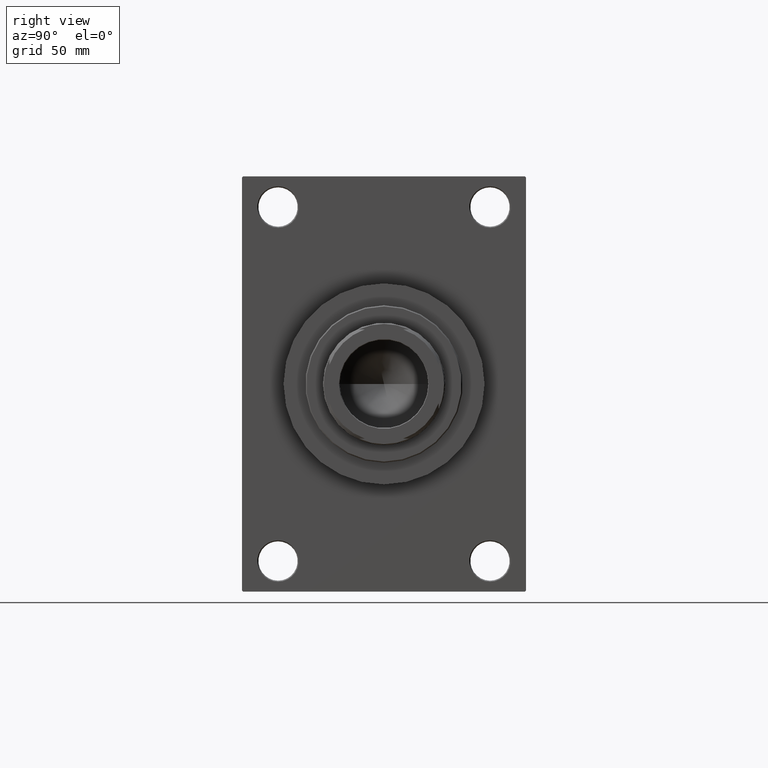
[diagram: clean part render]
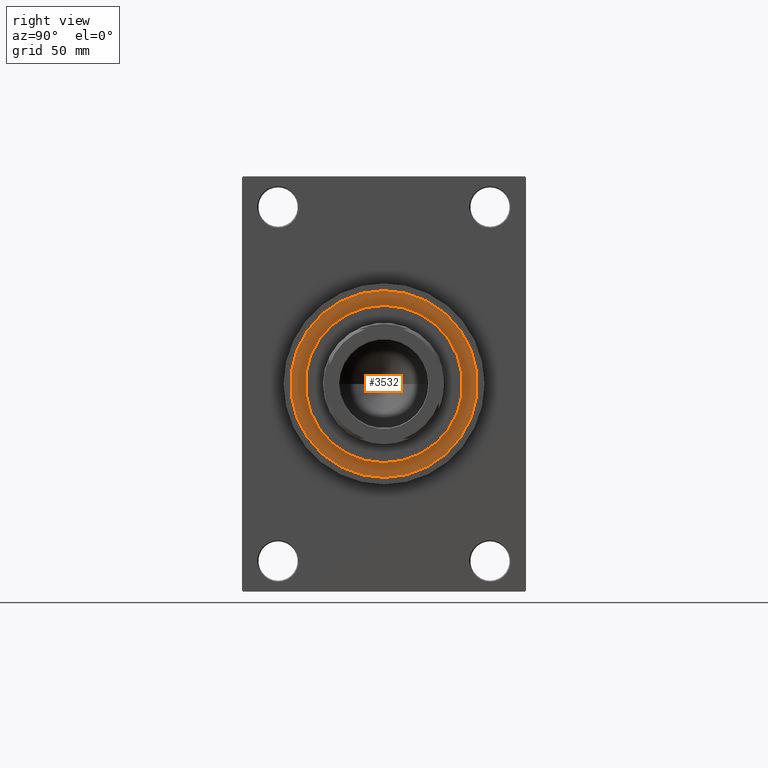
[diagram: same view with one face highlighted and labeled with its STEP entity id]
A machine part, right view. The second image highlights one B-rep face of the part: STEP entity #3532.
In plain terms, the highlighted planar face has unit normal (1, 0, 0).
Its self-contained STEP definition (entity closure, byte-faithful):
#27 = CIRCLE ( 'NONE', #16969, 36.00000000000000000 ) ;
#67 = DIRECTION ( 'NONE',  ( 0.000000000000000000, 0.000000000000000000, 1.000000000000000000 ) ) ;
#1664 = CARTESIAN_POINT ( 'NONE',  ( 0.000000000000000000, 0.000000000000000000, 43.25999999999999801 ) ) ;
#3532 = ADVANCED_FACE ( 'NONE', ( #22482, #27477 ), #23842, .T. ) ;
#4160 = DIRECTION ( 'NONE',  ( 0.000000000000000000, 0.000000000000000000, 1.000000000000000000 ) ) ;
#5552 = EDGE_CURVE ( 'NONE', #26042, #22552, #27, .T. ) ;
#6130 = ORIENTED_EDGE ( 'NONE', *, *, #45404, .F. ) ;
#6534 = VERTEX_POINT ( 'NONE', #26941 ) ;
#12100 = CIRCLE ( 'NONE', #39849, 42.75000000000000000 ) ;
#12551 = DIRECTION ( 'NONE',  ( 0.000000000000000000, 0.000000000000000000, 1.000000000000000000 ) ) ;
#12820 = ORIENTED_EDGE ( 'NONE', *, *, #22898, .T. ) ;
#14849 = ORIENTED_EDGE ( 'NONE', *, *, #29747, .T. ) ;
#14887 = DIRECTION ( 'NONE',  ( 0.000000000000000000, 0.000000000000000000, 1.000000000000000000 ) ) ;
#15002 = DIRECTION ( 'NONE',  ( 1.000000000000000000, 0.000000000000000000, -0.000000000000000000 ) ) ;
#15985 = CARTESIAN_POINT ( 'NONE',  ( 0.000000000000000000, 0.000000000000000000, 43.25999999999999801 ) ) ;
#16717 = CARTESIAN_POINT ( 'NONE',  ( -42.75000000000000000, 0.000000000000000000, 43.25999999999999801 ) ) ;
#16969 = AXIS2_PLACEMENT_3D ( 'NONE', #18502, #14887, #29395 ) ;
#17469 = CARTESIAN_POINT ( 'NONE',  ( -36.00000000000000000, 0.000000000000000000, 43.25999999999999801 ) ) ;
#17920 = CARTESIAN_POINT ( 'NONE',  ( 0.000000000000000000, 0.000000000000000000, 43.25999999999999801 ) ) ;
#18502 = CARTESIAN_POINT ( 'NONE',  ( 0.000000000000000000, 0.000000000000000000, 43.25999999999999801 ) ) ;
#20261 = DIRECTION ( 'NONE',  ( 1.000000000000000000, 0.000000000000000000, 0.000000000000000000 ) ) ;
#22482 = FACE_BOUND ( 'NONE', #38676, .T. ) ;
#22552 = VERTEX_POINT ( 'NONE', #35398 ) ;
#22898 = EDGE_CURVE ( 'NONE', #34071, #6534, #12100, .T. ) ;
#23135 = AXIS2_PLACEMENT_3D ( 'NONE', #15985, #41371, #30727 ) ;
#23842 = PLANE ( 'NONE',  #25404 ) ;
#25404 = AXIS2_PLACEMENT_3D ( 'NONE', #1664, #4160, #15002 ) ;
#26042 = VERTEX_POINT ( 'NONE', #17469 ) ;
#26618 = EDGE_LOOP ( 'NONE', ( #12820, #14849 ) ) ;
#26941 = CARTESIAN_POINT ( 'NONE',  ( 42.75000000000000000, 5.235365066354935472E-15, 43.25999999999999801 ) ) ;
#27477 = FACE_OUTER_BOUND ( 'NONE', #26618, .T. ) ;
#27889 = CIRCLE ( 'NONE', #44098, 36.00000000000000000 ) ;
#29395 = DIRECTION ( 'NONE',  ( 1.000000000000000000, 0.000000000000000000, 0.000000000000000000 ) ) ;
#29747 = EDGE_CURVE ( 'NONE', #6534, #34071, #30051, .T. ) ;
#30051 = CIRCLE ( 'NONE', #23135, 42.75000000000000000 ) ;
#30727 = DIRECTION ( 'NONE',  ( 1.000000000000000000, 0.000000000000000000, 0.000000000000000000 ) ) ;
#33142 = DIRECTION ( 'NONE',  ( 1.000000000000000000, 0.000000000000000000, 0.000000000000000000 ) ) ;
#34071 = VERTEX_POINT ( 'NONE', #16717 ) ;
#35398 = CARTESIAN_POINT ( 'NONE',  ( 36.00000000000000000, 4.408728476930470856E-15, 43.25999999999999801 ) ) ;
#35777 = ORIENTED_EDGE ( 'NONE', *, *, #5552, .F. ) ;
#38676 = EDGE_LOOP ( 'NONE', ( #35777, #6130 ) ) ;
#39849 = AXIS2_PLACEMENT_3D ( 'NONE', #17920, #67, #33142 ) ;
#41371 = DIRECTION ( 'NONE',  ( 0.000000000000000000, 0.000000000000000000, 1.000000000000000000 ) ) ;
#42498 = CARTESIAN_POINT ( 'NONE',  ( 0.000000000000000000, 0.000000000000000000, 43.25999999999999801 ) ) ;
#44098 = AXIS2_PLACEMENT_3D ( 'NONE', #42498, #12551, #20261 ) ;
#45404 = EDGE_CURVE ( 'NONE', #22552, #26042, #27889, .T. ) ;